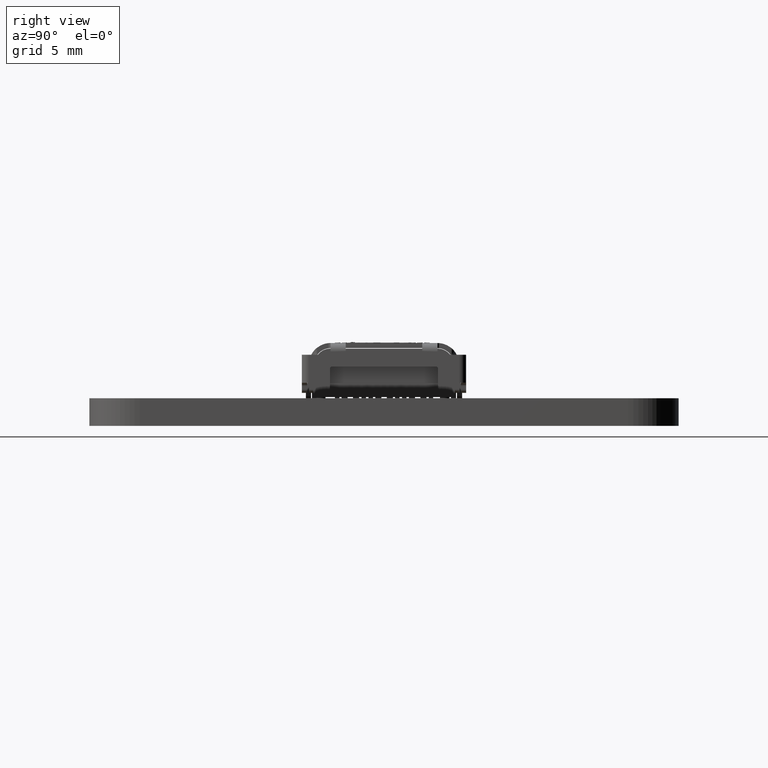
[diagram: clean part render]
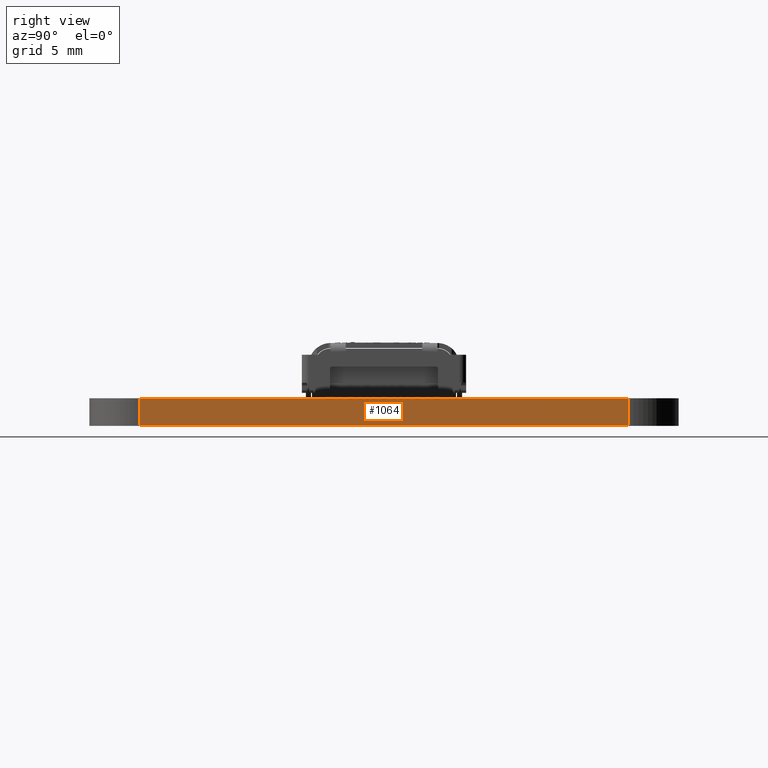
[diagram: same view with one face highlighted and labeled with its STEP entity id]
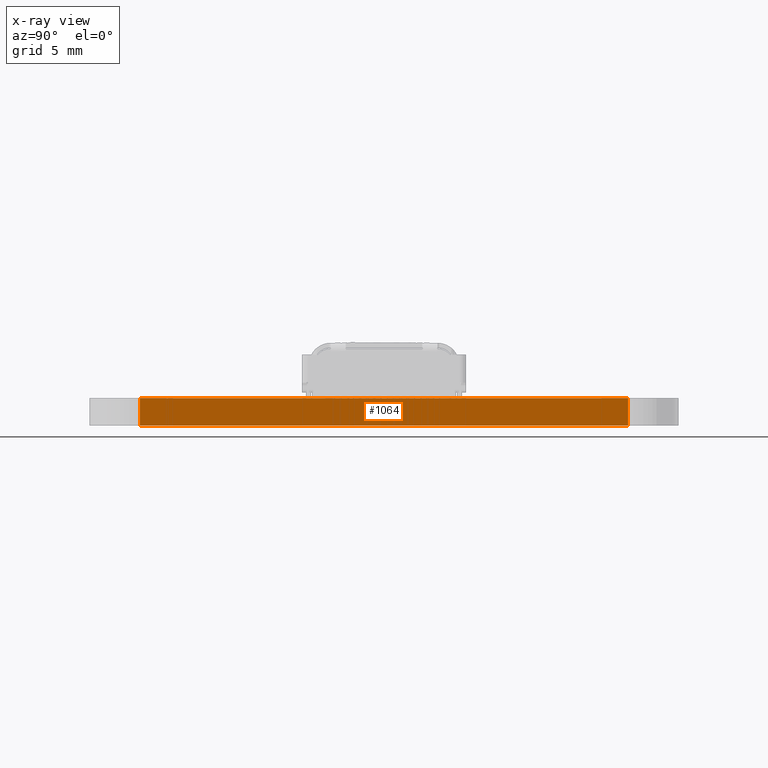
[diagram: x-ray of the same camera — body ghosted, the highlighted face saturated]
A machine part, right view. The second image highlights one B-rep face of the part: STEP entity #1064.
The next image is the same camera in x-ray: the body ghosted, the highlighted face saturated — about 0% of this face is hidden behind the body in this view.
In plain terms, the highlighted planar face has unit normal (-1, 0, 0).
Its self-contained STEP definition (entity closure, byte-faithful):
#1006 = EDGE_CURVE('',#1007,#1009,#1011,.T.);
#1007 = VERTEX_POINT('',#1008);
#1008 = CARTESIAN_POINT('',(16.5,14.5,-0.82));
#1009 = VERTEX_POINT('',#1010);
#1010 = CARTESIAN_POINT('',(16.5,14.5,0.82));
#1011 = LINE('',#1012,#1013);
#1012 = CARTESIAN_POINT('',(16.5,14.5,-0.82));
#1013 = VECTOR('',#1014,1.);
#1014 = DIRECTION('',(0.E+000,0.E+000,1.));
#1064 = ADVANCED_FACE('',(#1065),#1090,.F.);
#1065 = FACE_BOUND('',#1066,.F.);
#1066 = EDGE_LOOP('',(#1067,#1077,#1083,#1084));
#1067 = ORIENTED_EDGE('',*,*,#1068,.T.);
#1068 = EDGE_CURVE('',#1069,#1071,#1073,.T.);
#1069 = VERTEX_POINT('',#1070);
#1070 = CARTESIAN_POINT('',(16.5,-14.5,-0.82));
#1071 = VERTEX_POINT('',#1072);
#1072 = CARTESIAN_POINT('',(16.5,-14.5,0.82));
#1073 = LINE('',#1074,#1075);
#1074 = CARTESIAN_POINT('',(16.5,-14.5,-0.82));
#1075 = VECTOR('',#1076,1.);
#1076 = DIRECTION('',(0.E+000,0.E+000,1.));
#1077 = ORIENTED_EDGE('',*,*,#1078,.T.);
#1078 = EDGE_CURVE('',#1071,#1009,#1079,.T.);
#1079 = LINE('',#1080,#1081);
#1080 = CARTESIAN_POINT('',(16.5,-14.5,0.82));
#1081 = VECTOR('',#1082,1.);
#1082 = DIRECTION('',(0.E+000,1.,0.E+000));
#1083 = ORIENTED_EDGE('',*,*,#1006,.F.);
#1084 = ORIENTED_EDGE('',*,*,#1085,.F.);
#1085 = EDGE_CURVE('',#1069,#1007,#1086,.T.);
#1086 = LINE('',#1087,#1088);
#1087 = CARTESIAN_POINT('',(16.5,-14.5,-0.82));
#1088 = VECTOR('',#1089,1.);
#1089 = DIRECTION('',(0.E+000,1.,0.E+000));
#1090 = PLANE('',#1091);
#1091 = AXIS2_PLACEMENT_3D('',#1092,#1093,#1094);
#1092 = CARTESIAN_POINT('',(16.5,-14.5,-0.82));
#1093 = DIRECTION('',(-1.,0.E+000,0.E+000));
#1094 = DIRECTION('',(0.E+000,1.,0.E+000));